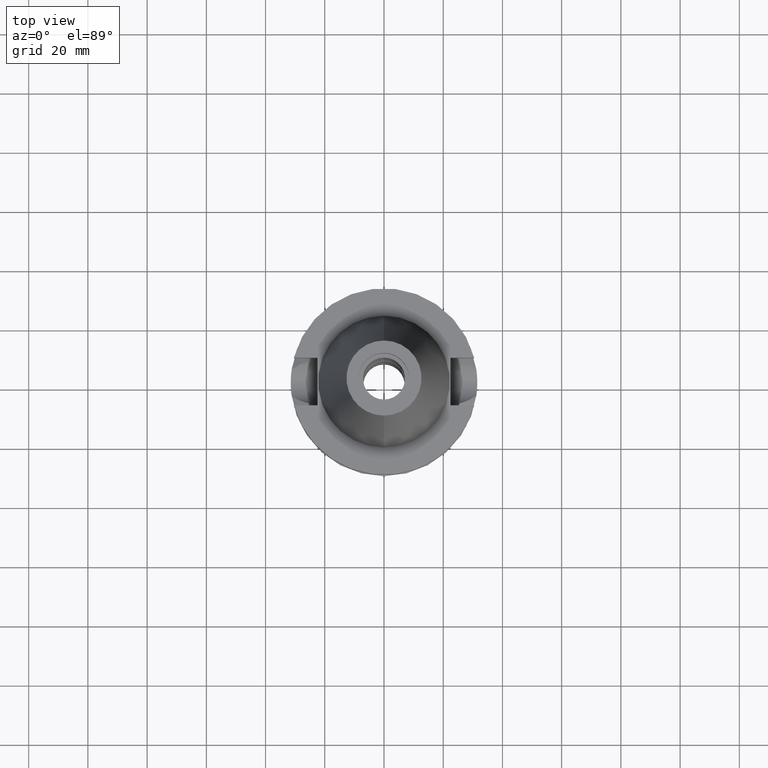
[diagram: clean part render]
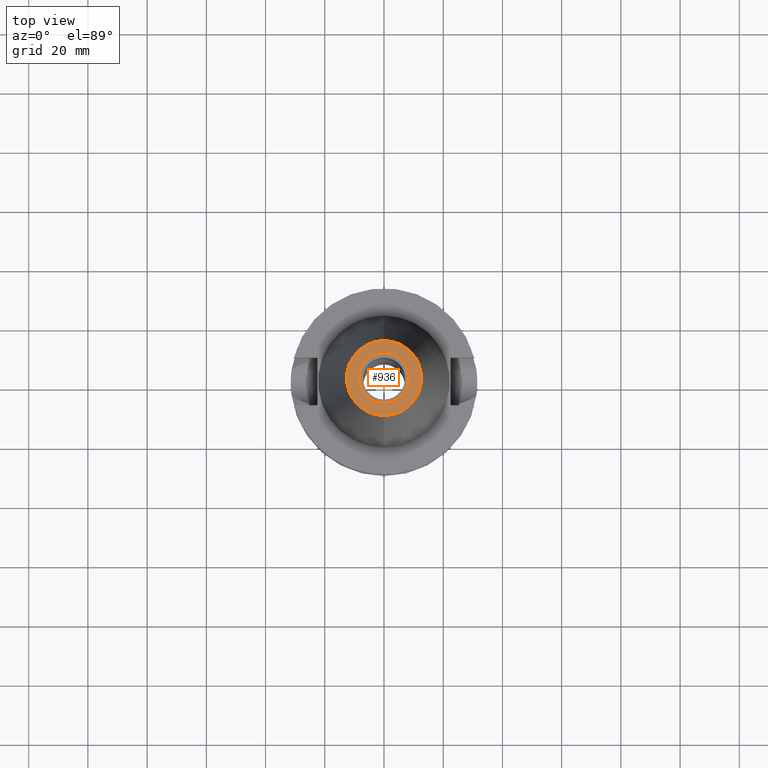
[diagram: same view with one face highlighted and labeled with its STEP entity id]
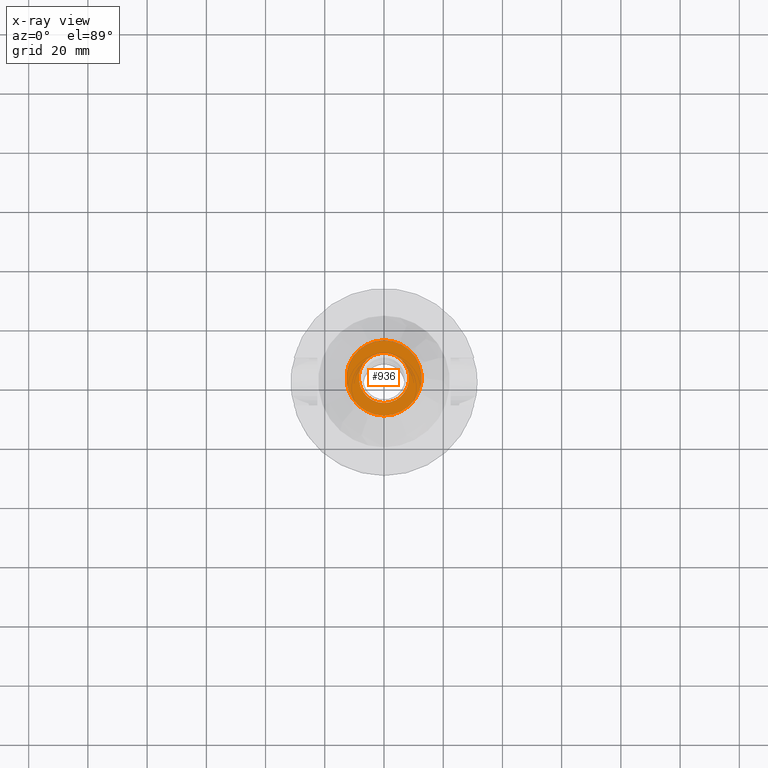
[diagram: x-ray of the same camera — body ghosted, the highlighted face saturated]
A machine part, top view. The second image highlights one B-rep face of the part: STEP entity #936.
The next image is the same camera in x-ray: the body ghosted, the highlighted face saturated — about 0% of this face is hidden behind the body in this view.
In plain terms, the highlighted planar face has unit normal (0, 0, -1).
Its self-contained STEP definition (entity closure, byte-faithful):
#56 = ORIENTED_EDGE ( 'NONE', *, *, #380, .F. ) ;
#80 = ORIENTED_EDGE ( 'NONE', *, *, #500, .F. ) ;
#84 = CARTESIAN_POINT ( 'NONE',  ( 0.0000000000000000000, 2.161746529854999700E-14, 65.40000000000000568 ) ) ;
#136 = CARTESIAN_POINT ( 'NONE',  ( 0.0000000000000000000, 2.025565805790000122E-14, 65.40000000000000568 ) ) ;
#154 = AXIS2_PLACEMENT_3D ( 'NONE', #84, #2085, #1207 ) ;
#278 = EDGE_LOOP ( 'NONE', ( #56, #2071 ) ) ;
#380 = EDGE_CURVE ( 'NONE', #2551, #2821, #573, .T. ) ;
#432 = EDGE_CURVE ( 'NONE', #2821, #2551, #1217, .T. ) ;
#483 = VERTEX_POINT ( 'NONE', #3174 ) ;
#500 = EDGE_CURVE ( 'NONE', #1414, #483, #630, .T. ) ;
#548 = DIRECTION ( 'NONE',  ( 0.0000000000000000000, 1.000000000000000000, 0.0000000000000000000 ) ) ;
#573 = CIRCLE ( 'NONE', #1398, 12.68766899429999917 ) ;
#600 = DIRECTION ( 'NONE',  ( 0.0000000000000000000, -1.000000000000000000, 0.0000000000000000000 ) ) ;
#630 = CIRCLE ( 'NONE', #920, 8.500000000000000000 ) ;
#676 = CIRCLE ( 'NONE', #154, 8.500000000000000000 ) ;
#734 = DIRECTION ( 'NONE',  ( 0.0000000000000000000, -1.000000000000000000, 0.0000000000000000000 ) ) ;
#753 = ORIENTED_EDGE ( 'NONE', *, *, #1741, .F. ) ;
#920 = AXIS2_PLACEMENT_3D ( 'NONE', #3499, #957, #2096 ) ;
#936 = ADVANCED_FACE ( 'NONE', ( #2946, #2923 ), #2674, .F. ) ;
#957 = DIRECTION ( 'NONE',  ( 0.0000000000000000000, 0.0000000000000000000, 1.000000000000000000 ) ) ;
#1207 = DIRECTION ( 'NONE',  ( 0.0000000000000000000, 1.000000000000000000, 0.0000000000000000000 ) ) ;
#1217 = CIRCLE ( 'NONE', #1579, 12.68766899429999917 ) ;
#1398 = AXIS2_PLACEMENT_3D ( 'NONE', #3076, #1982, #548 ) ;
#1414 = VERTEX_POINT ( 'NONE', #2277 ) ;
#1552 = CARTESIAN_POINT ( 'NONE',  ( 0.0000000000000000000, 12.68766899429999917, 65.40000000000000568 ) ) ;
#1579 = AXIS2_PLACEMENT_3D ( 'NONE', #2909, #3209, #600 ) ;
#1741 = EDGE_CURVE ( 'NONE', #483, #1414, #676, .T. ) ;
#1877 = AXIS2_PLACEMENT_3D ( 'NONE', #136, #2118, #734 ) ;
#1982 = DIRECTION ( 'NONE',  ( 0.0000000000000000000, 0.0000000000000000000, -1.000000000000000000 ) ) ;
#2071 = ORIENTED_EDGE ( 'NONE', *, *, #432, .F. ) ;
#2085 = DIRECTION ( 'NONE',  ( 0.0000000000000000000, 0.0000000000000000000, 1.000000000000000000 ) ) ;
#2096 = DIRECTION ( 'NONE',  ( 0.0000000000000000000, -1.000000000000000000, 0.0000000000000000000 ) ) ;
#2118 = DIRECTION ( 'NONE',  ( 0.0000000000000000000, 0.0000000000000000000, -1.000000000000000000 ) ) ;
#2277 = CARTESIAN_POINT ( 'NONE',  ( 0.0000000000000000000, -8.500000000000000000, 65.40000000000000568 ) ) ;
#2371 = EDGE_LOOP ( 'NONE', ( #753, #80 ) ) ;
#2462 = CARTESIAN_POINT ( 'NONE',  ( 0.0000000000000000000, -12.68766899429999917, 65.40000000000000568 ) ) ;
#2551 = VERTEX_POINT ( 'NONE', #1552 ) ;
#2674 = PLANE ( 'NONE',  #1877 ) ;
#2821 = VERTEX_POINT ( 'NONE', #2462 ) ;
#2909 = CARTESIAN_POINT ( 'NONE',  ( 0.0000000000000000000, 1.625106302469000024E-14, 65.40000000000000568 ) ) ;
#2923 = FACE_BOUND ( 'NONE', #2371, .T. ) ;
#2946 = FACE_OUTER_BOUND ( 'NONE', #278, .T. ) ;
#3076 = CARTESIAN_POINT ( 'NONE',  ( 0.0000000000000000000, 1.625106302469000024E-14, 65.40000000000000568 ) ) ;
#3174 = CARTESIAN_POINT ( 'NONE',  ( 0.0000000000000000000, 8.500000000000000000, 65.40000000000000568 ) ) ;
#3209 = DIRECTION ( 'NONE',  ( 0.0000000000000000000, 0.0000000000000000000, -1.000000000000000000 ) ) ;
#3499 = CARTESIAN_POINT ( 'NONE',  ( 0.0000000000000000000, 2.161746529854999700E-14, 65.40000000000000568 ) ) ;